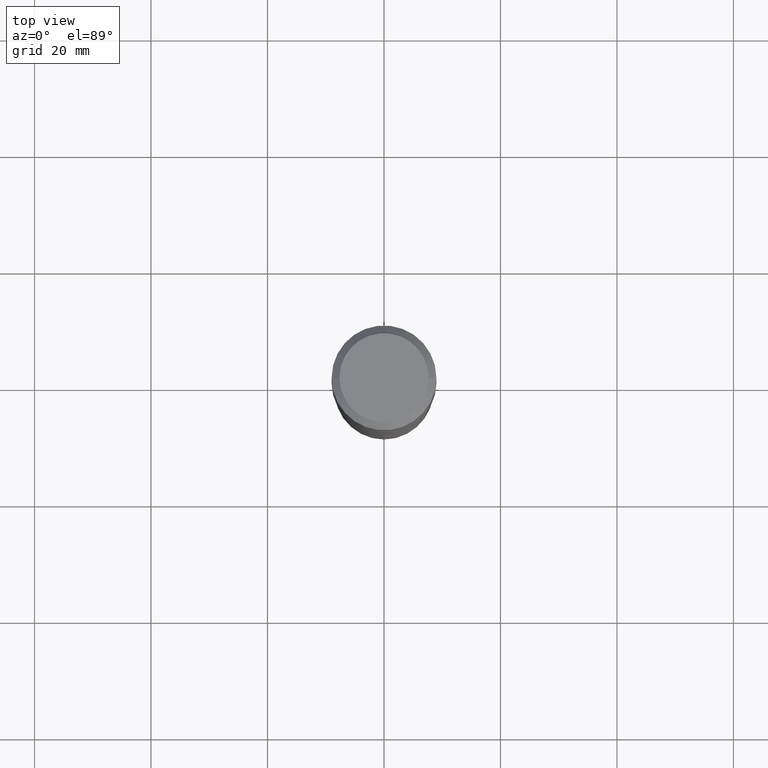
[diagram: clean part render]
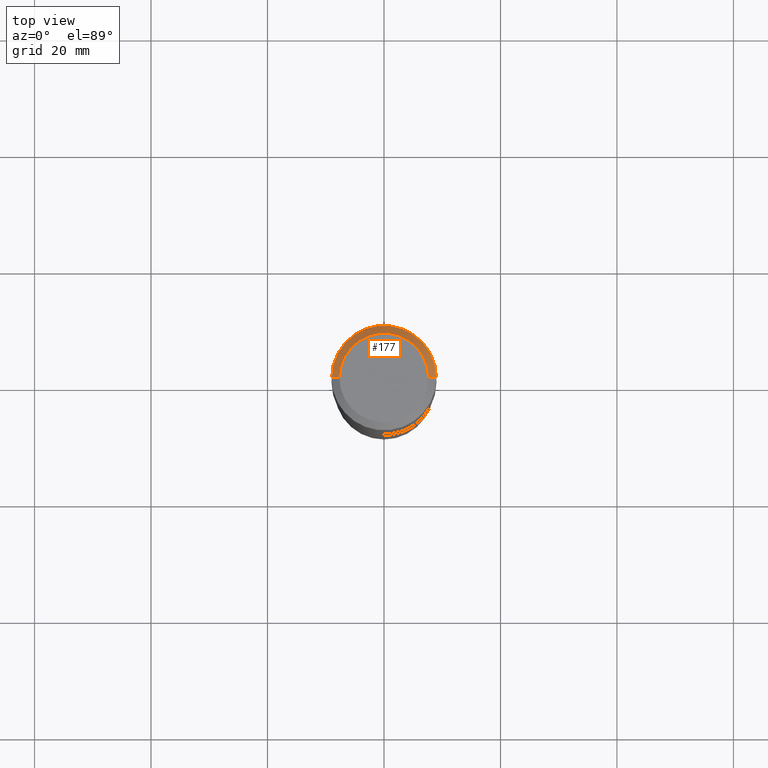
[diagram: same view with one face highlighted and labeled with its STEP entity id]
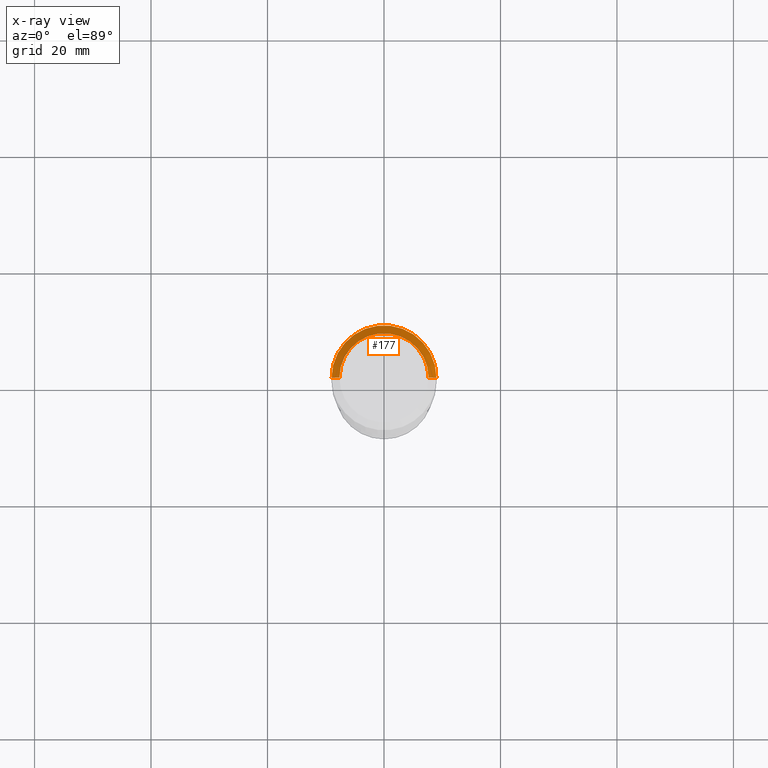
[diagram: x-ray of the same camera — body ghosted, the highlighted face saturated]
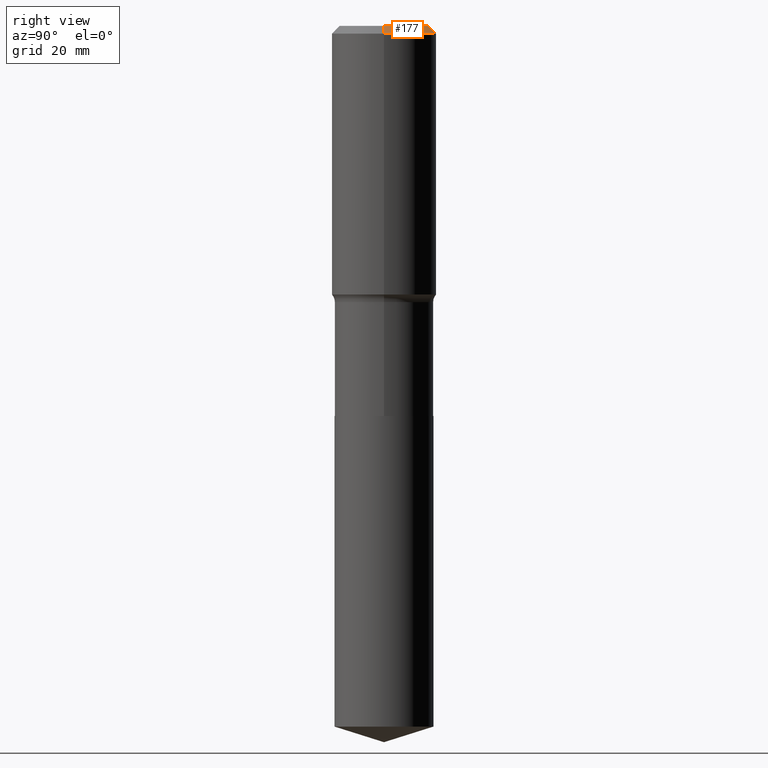
[diagram: same view with one face highlighted and labeled with its STEP entity id]
A machine part, top view. The second image highlights one B-rep face of the part: STEP entity #177.
The next image is the same camera in x-ray: the body ghosted, the highlighted face saturated — about 0% of this face is hidden behind the body in this view.
A second angle (right view) of the same face is appended — the face is thin or edge-on in the first view.
In plain terms, the highlighted conical surface has half-angle 45 deg.
Its self-contained STEP definition (entity closure, byte-faithful):
#6 = DIRECTION ( 'NONE',  ( 1.000000000000000000, -6.982962677686266711E-15, 4.876239486148337140E-29 ) ) ;
#12 = CARTESIAN_POINT ( 'NONE',  ( 0.3543499999999999983, -2.659993786700990170E-15, -0.05315250000000035224 ) ) ;
#47 = DIRECTION ( 'NONE',  ( -2.445468806185136597E-29, 3.491481338843145583E-15, 1.000000000000000000 ) ) ;
#48 = CIRCLE ( 'NONE', #310, 0.3543499999999999983 ) ;
#56 = CARTESIAN_POINT ( 'NONE',  ( 1.299827807207563322E-30, -1.855809618628615256E-16, -0.05315250000000035224 ) ) ;
#66 = VECTOR ( 'NONE', #391, 39.37007874015748143 ) ;
#74 = CARTESIAN_POINT ( 'NONE',  ( -0.3011975000000000069, 2.196041382043838255E-15, 4.101342130329452923E-18 ) ) ;
#76 = VERTEX_POINT ( 'NONE', #12 ) ;
#82 = EDGE_LOOP ( 'NONE', ( #459, #122, #487, #306 ) ) ;
#96 = CARTESIAN_POINT ( 'NONE',  ( -0.3543499999999999983, 2.288831862975267218E-15, -0.05315250000000035224 ) ) ;
#104 = CIRCLE ( 'NONE', #300, 0.3011975000000000069 ) ;
#122 = ORIENTED_EDGE ( 'NONE', *, *, #440, .T. ) ;
#133 = LINE ( 'NONE', #437, #66 ) ;
#172 = AXIS2_PLACEMENT_3D ( 'NONE', #56, #388, #462 ) ;
#177 = ADVANCED_FACE ( 'NONE', ( #203 ), #363, .T. ) ;
#203 = FACE_OUTER_BOUND ( 'NONE', #82, .T. ) ;
#255 = VECTOR ( 'NONE', #295, 39.37007874015748143 ) ;
#262 = DIRECTION ( 'NONE',  ( -2.445468806185136597E-29, 3.491481338843145583E-15, 1.000000000000000000 ) ) ;
#288 = EDGE_CURVE ( 'NONE', #332, #374, #427, .T. ) ;
#295 = DIRECTION ( 'NONE',  ( -0.7071067811865452413, 2.468850131082233000E-15, -0.7071067811865497932 ) ) ;
#300 = AXIS2_PLACEMENT_3D ( 'NONE', #382, #47, #6 ) ;
#301 = VERTEX_POINT ( 'NONE', #380 ) ;
#305 = EDGE_CURVE ( 'NONE', #76, #374, #48, .T. ) ;
#306 = ORIENTED_EDGE ( 'NONE', *, *, #288, .F. ) ;
#310 = AXIS2_PLACEMENT_3D ( 'NONE', #461, #262, #488 ) ;
#332 = VERTEX_POINT ( 'NONE', #74 ) ;
#363 = CONICAL_SURFACE ( 'NONE', #172, 0.3543499999999999983, 0.7853981633974450594 ) ;
#367 = EDGE_CURVE ( 'NONE', #301, #332, #104, .T. ) ;
#374 = VERTEX_POINT ( 'NONE', #418 ) ;
#380 = CARTESIAN_POINT ( 'NONE',  ( 0.3011975000000000069, -2.341481636528497322E-15, 4.101342130360026675E-18 ) ) ;
#382 = CARTESIAN_POINT ( 'NONE',  ( -1.002970424325033577E-46, 1.431975951230896212E-32, 4.101342130344485961E-18 ) ) ;
#388 = DIRECTION ( 'NONE',  ( 2.445468806185136597E-29, -3.491481338843145583E-15, -1.000000000000000000 ) ) ;
#391 = DIRECTION ( 'NONE',  ( 0.7071067811865452413, -7.319954787623248157E-15, -0.7071067811865497932 ) ) ;
#418 = CARTESIAN_POINT ( 'NONE',  ( -0.3543499999999999983, -7.457395691680486953E-16, -0.05315250000000035224 ) ) ;
#427 = LINE ( 'NONE', #96, #255 ) ;
#437 = CARTESIAN_POINT ( 'NONE',  ( 0.3543499999999999983, -2.616598427373203868E-15, -0.05315250000000035224 ) ) ;
#440 = EDGE_CURVE ( 'NONE', #301, #76, #133, .T. ) ;
#459 = ORIENTED_EDGE ( 'NONE', *, *, #367, .F. ) ;
#461 = CARTESIAN_POINT ( 'NONE',  ( 1.299827807207563322E-30, -1.855809618628615256E-16, -0.05315250000000035224 ) ) ;
#462 = DIRECTION ( 'NONE',  ( -1.000000000000000000, 6.982962677686266711E-15, 0.000000000000000000 ) ) ;
#487 = ORIENTED_EDGE ( 'NONE', *, *, #305, .T. ) ;
#488 = DIRECTION ( 'NONE',  ( 1.000000000000000000, -6.982962677686266711E-15, 0.000000000000000000 ) ) ;